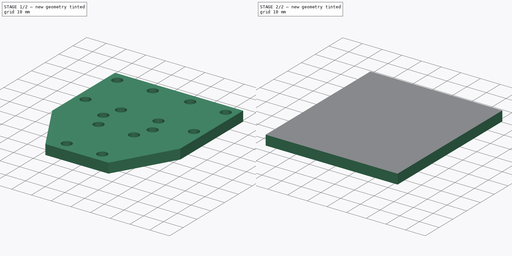
[diagram: build sequence overview — one tinted view per stage of 2, left to right]
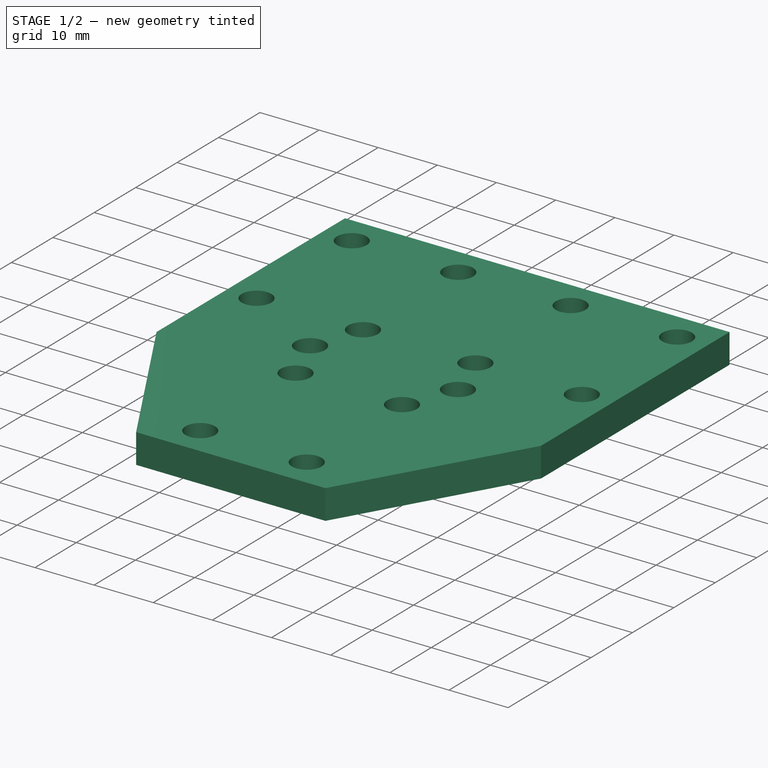
[diagram: stage 1 of 2 — iso view after this stage's code; geometry added in this stage tinted green]
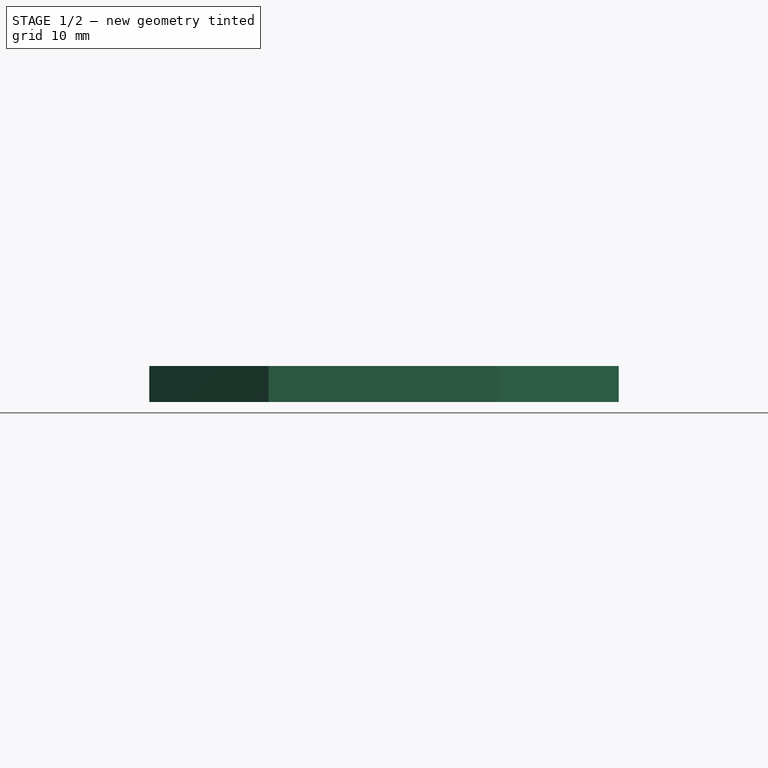
[diagram: stage 1 of 2 — front view after this stage's code; geometry added in this stage tinted green]
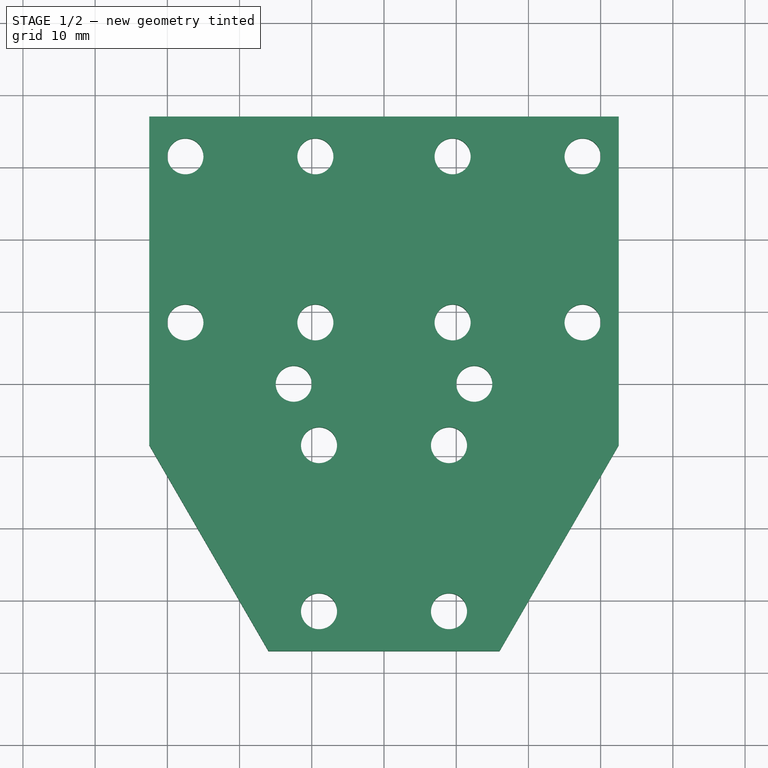
[diagram: stage 1 of 2 — top view after this stage's code; geometry added in this stage tinted green]
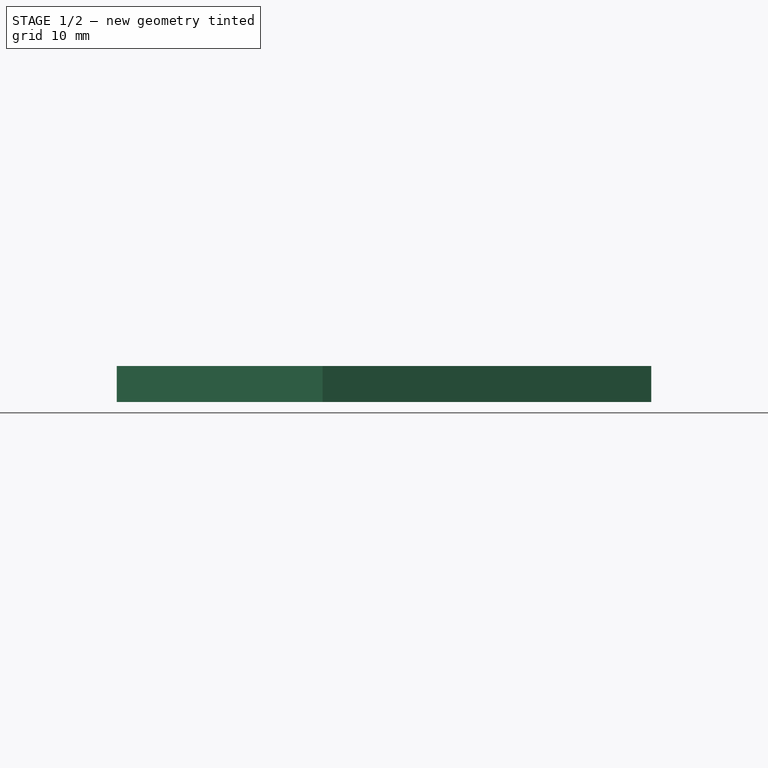
[diagram: stage 1 of 2 — right view after this stage's code; geometry added in this stage tinted green]
FCSTD DOCUMENT  (FreeCAD 0.18.3R)
Label: Soporte_Hot_end
License: All rights reserved
LicenseURL: http://en.wikipedia.org/wiki/All_rights_reserved
objects: Path::FeaturePython×4, Part::FeaturePython×2, Sketcher::SketchObject×1, PartDesign::Pad×1, PartDesign::Body×1, App::FeaturePython×1, App::DocumentObjectGroup×1, Path::FeatureCompoundPython×1
note: 8 computed .brp shape members not serialized (recipe doc carries the construction recipe); baked Part::Feature solids carry a one-line shape summary decoded from their .brp

FEATURE [Sketcher::SketchObject] Sketch
  MapMode = 5
  Support = -> [XY_Plane]
  sketch-geometry (27):
    g0: LineSegment [constr] StartX=-32.5 StartY=20 StartZ=0 EndX=32.5 EndY=20 EndZ=0
    g1: LineSegment [constr] StartX=32.5 StartY=20 StartZ=0 EndX=32.5 EndY=-20 EndZ=0
    g2: LineSegment [constr] StartX=32.5 StartY=-20 StartZ=0 EndX=-32.5 EndY=-20 EndZ=0
    g3: LineSegment [constr] StartX=-32.5 StartY=-20 StartZ=0 EndX=-32.5 EndY=20 EndZ=0
    g4: LineSegment StartX=-32.5 StartY=37 StartZ=0 EndX=32.5 EndY=37 EndZ=0
    g5: LineSegment [constr] StartX=32.5 StartY=37 StartZ=0 EndX=32.5 EndY=-37 EndZ=0
    g6: LineSegment [constr] StartX=32.5 StartY=-37 StartZ=0 EndX=-32.5 EndY=-37 EndZ=0
    g7: LineSegment [constr] StartX=-32.5 StartY=-37 StartZ=0 EndX=-32.5 EndY=37 EndZ=0
    g8: Circle CenterX=27.5 CenterY=31.5 CenterZ=0 NormalX=0 NormalY=0 NormalZ=1 AngleXU=0 Radius=2.5
    g9: Circle CenterX=-27.5 CenterY=31.5 CenterZ=0 NormalX=0 NormalY=0 NormalZ=1 AngleXU=0 Radius=2.5
    g10: Circle CenterX=9.5 CenterY=31.5 CenterZ=0 NormalX=0 NormalY=0 NormalZ=1 AngleXU=0 Radius=2.5
    g11: Circle CenterX=-9.5 CenterY=31.5 CenterZ=0 NormalX=0 NormalY=0 NormalZ=1 AngleXU=0 Radius=2.5
    g12: Circle CenterX=27.5 CenterY=8.5 CenterZ=0 NormalX=0 NormalY=0 NormalZ=1 AngleXU=0 Radius=2.5
    g13: Circle CenterX=-27.5 CenterY=8.5 CenterZ=0 NormalX=0 NormalY=0 NormalZ=1 AngleXU=0 Radius=2.5
    g14: Circle CenterX=9.5 CenterY=8.5 CenterZ=0 NormalX=0 NormalY=0 NormalZ=1 AngleXU=0 Radius=2.5
    g15: Circle CenterX=-9.5 CenterY=8.5 CenterZ=0 NormalX=0 NormalY=0 NormalZ=1 AngleXU=0 Radius=2.5
    g16: Circle CenterX=9 CenterY=-31.5 CenterZ=0 NormalX=0 NormalY=0 NormalZ=1 AngleXU=0 Radius=2.5
    g17: Circle CenterX=-9 CenterY=-31.5 CenterZ=0 NormalX=0 NormalY=0 NormalZ=1 AngleXU=0 Radius=2.5
    g18: Circle CenterX=9 CenterY=-8.5 CenterZ=0 NormalX=0 NormalY=0 NormalZ=1 AngleXU=0 Radius=2.5
    g19: Circle CenterX=-9 CenterY=-8.5 CenterZ=0 NormalX=0 NormalY=0 NormalZ=1 AngleXU=0 Radius=2.5
    g20: Circle CenterX=12.5 CenterY=0 CenterZ=0 NormalX=0 NormalY=0 NormalZ=1 AngleXU=0 Radius=2.5
    g21: Circle CenterX=-12.5 CenterY=0 CenterZ=0 NormalX=0 NormalY=0 NormalZ=1 AngleXU=0 Radius=2.5
    g22: LineSegment StartX=32.5 StartY=-8.5 StartZ=0 EndX=16 EndY=-37 EndZ=0
    g23: LineSegment StartX=32.5 StartY=37 StartZ=0 EndX=32.5 EndY=-8.5 EndZ=0
    g24: LineSegment StartX=16 StartY=-37 StartZ=0 EndX=-16 EndY=-37 EndZ=0
    g25: LineSegment StartX=-16 StartY=-37 StartZ=0 EndX=-32.5 EndY=-8.5 EndZ=0
    g26: LineSegment StartX=-32.5 StartY=-8.5 StartZ=0 EndX=-32.5 EndY=37 EndZ=0
  constraints (76):
    c: Coincident(g0,g1)
    c: Coincident(g1,g2)
    c: Coincident(g2,g3)
    c: Coincident(g3,g0)
    c: Horizontal(g0)
    c: Horizontal(g2)
    c: Vertical(g1)
    c: Vertical(g3)
    c: DistanceY(g3,g3) = 40
    c: DistanceX(g0,g0) = 65
    c: Coincident(g4,g5)
    c: Coincident(g5,g6)
    c: Coincident(g6,g7)
    c: Coincident(g7,g4)
    c: Horizontal(g4)
    c: Horizontal(g6)
    c: Vertical(g5)
    c: Vertical(g7)
    c: Symmetric(g0,g1,g-1)
    c: Symmetric(g5,g4,g-1)
    c: DistanceY(g5,g1) = 17
    c: DistanceX(g6,g2) = 0
    c: DistanceY(g0,g8) = 11.5
    c: Radius(g8) = 2.5  'holes'
    c: DistanceX(g8,g0) = 5
    c: Radius(g9) = 2.5  'holes'
    c: DistanceX(g0,g9) = 5
    c: DistanceY(g0,g9) = 11.5
    c: Equal(g8,g10) = 2.5  'holes'
    c: DistanceY(g0,g10) = 11.5
    c: DistanceX(g10,g8) = 18
    c: DistanceX(g9,g11) = 18
    c: DistanceY(g0,g11) = 11.5
    c: Equal(g11,g10)
    c: Radius(g12) = 2.5  'holes'
    c: Radius(g13) = 2.5  'holes'
    c: Equal(g12,g14) = 2.5  'holes'
    c: Equal(g15,g14)
    c: DistanceX(g12,g1) = 5
    c: DistanceY(g12,g0) = 11.5
    c: DistanceX(g14,g12) = 18
    c: DistanceY(g14,g0) = 11.5
    c: DistanceX(g0,g13) = 5
    c: DistanceY(g13,g0) = 11.5
    c: DistanceX(g13,g15) = 18
    c: DistanceY(g15,g0) = 11.5
    c: Radius(g16) = 2.5  'holes'
    c: Equal(g16,g17) = 2.5  'holes'
    c: Radius(g18) = 2.5  'holes'
    c: Equal(g18,g19) = 2.5  'holes'
    c: DistanceX(g19,g18) = 18
    c: DistanceX(g17,g16) = 18
    c: DistanceY(g1,g19) = 11.5
    c: DistanceY(g17,g1) = 11.5
    c: DistanceY(g16,g1) = 11.5
    c: DistanceX(g19,g17) = 0
    c: Symmetric(g19,g18,g-2)
    c: Equal(g21,g20)
    c: Symmetric(g21,g20,g-2)
    c: DistanceX(g21,g20) = 25
    c: Equal(g20,g14)
    c: PointOnObject(g21,g-1)
    c: PointOnObject(g22,g1)
    c: PointOnObject(g22,g6)
    c: Coincident(g23,g4)
    c: Coincident(g23,g22)
    c: Coincident(g24,g22)
    c: Coincident(g25,g24)
    c: PointOnObject(g25,g3)
    c: Coincident(g26,g25)
    c: Vertical(g26)
    c: Symmetric(g24,g22,g-2)
    c: Equal(g26,g23)
    c: DistanceY(g19,g25) = 0
    c: Equal(g22,g25)
    c: DistanceX(g24,g24) = 32
FEATURE [PartDesign::Pad] Pad
  Length = 5
  Length2 = 100
  Profile = -> Sketch
  Refine = true
  Reversed = true
  Type = 0
FEATURE [PartDesign::Body] Body
  Group = -> [Sketch,Pad]
  Origin = -> Origin
  Tip = -> Pad
FEATURE [App::FeaturePython] SetupSheet  # Path/CAM operation (typed FeaturePython)
  ClearanceHeightExpression = OpStockZMax+SetupSheet.ClearanceHeightOffset
  ClearanceHeightOffset = 3
  FinalDepthExpression = -5.5mm
  HorizRapid = 4
  SafeHeightExpression = OpStockZMax+SetupSheet.SafeHeightOffset
  SafeHeightOffset = 3
  StartDepthExpression = 0mm
  StepDownExpression = 1.5mm
  VertRapid = 4
FEATURE [Part::FeaturePython] Clone  label="Model-Body"  # Draft clone (typed FeaturePython)
  AttacherType = Attacher::AttachEngine3D
  Fuse = false
  Objects = -> [Body]
  PathResource = Model
  Scale = (1,1,1)
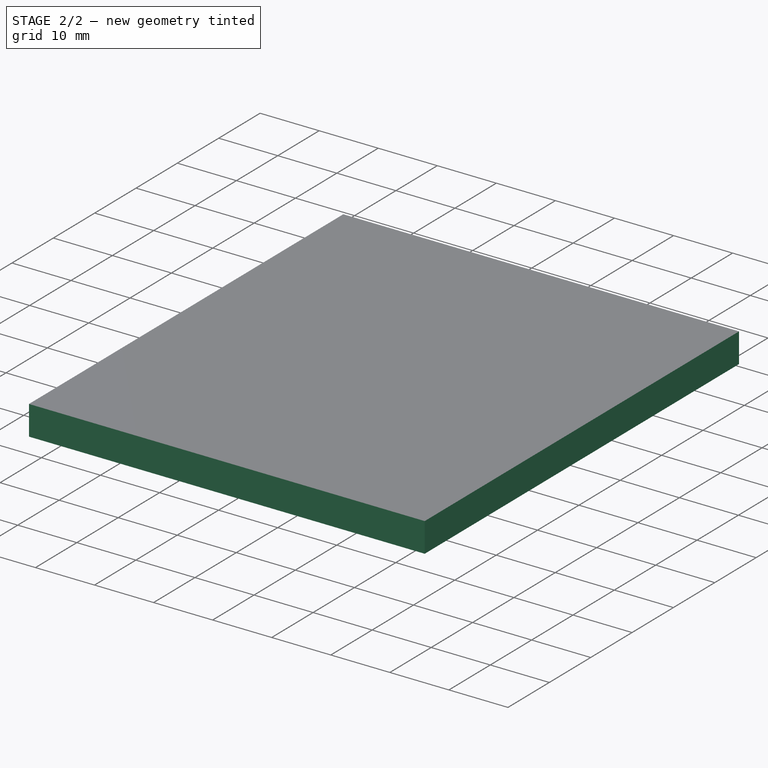
[diagram: stage 2 of 2 — iso view after this stage's code; geometry added in this stage tinted green]
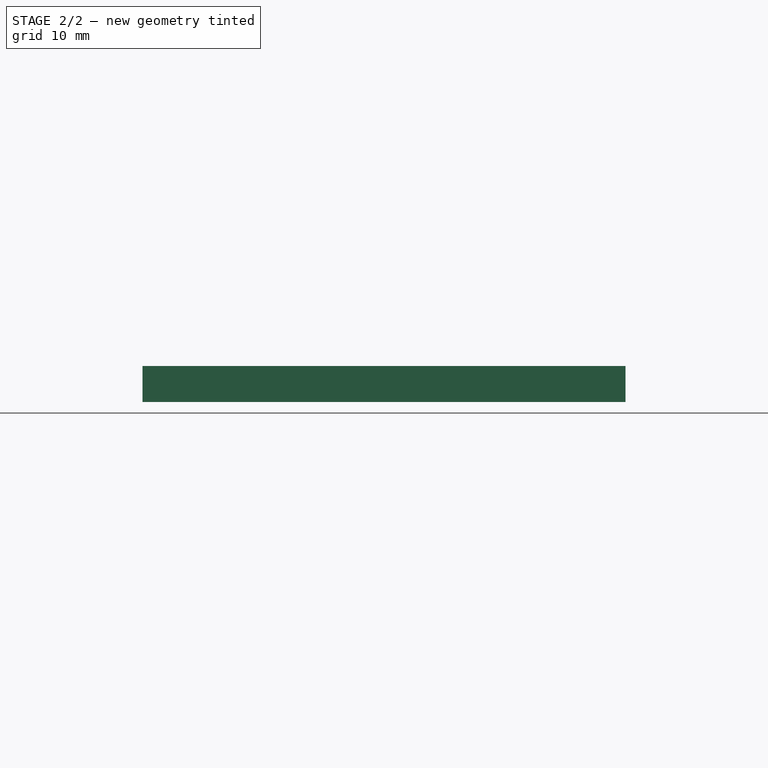
[diagram: stage 2 of 2 — front view after this stage's code; geometry added in this stage tinted green]
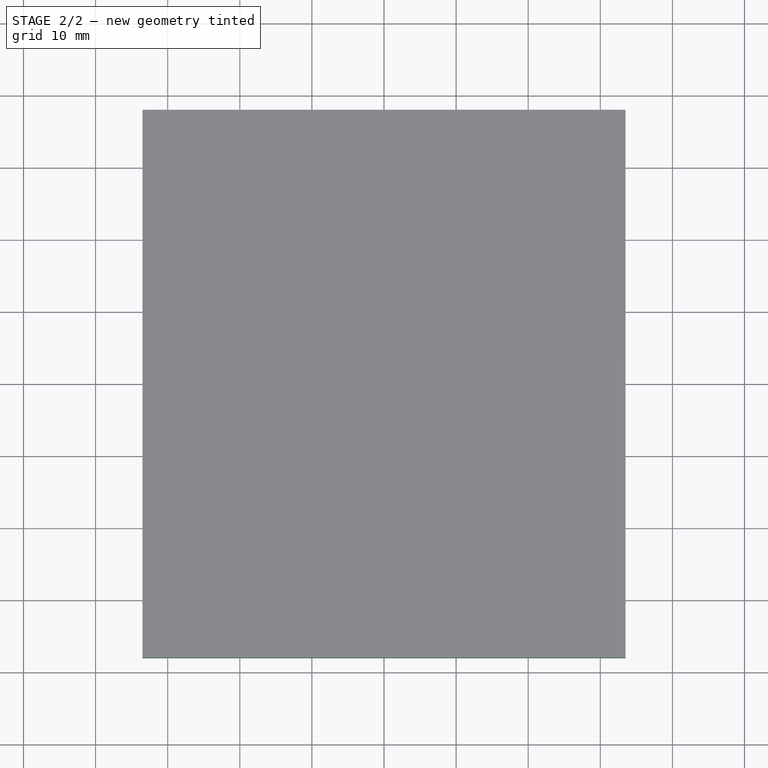
[diagram: stage 2 of 2 — top view after this stage's code; geometry added in this stage tinted green]
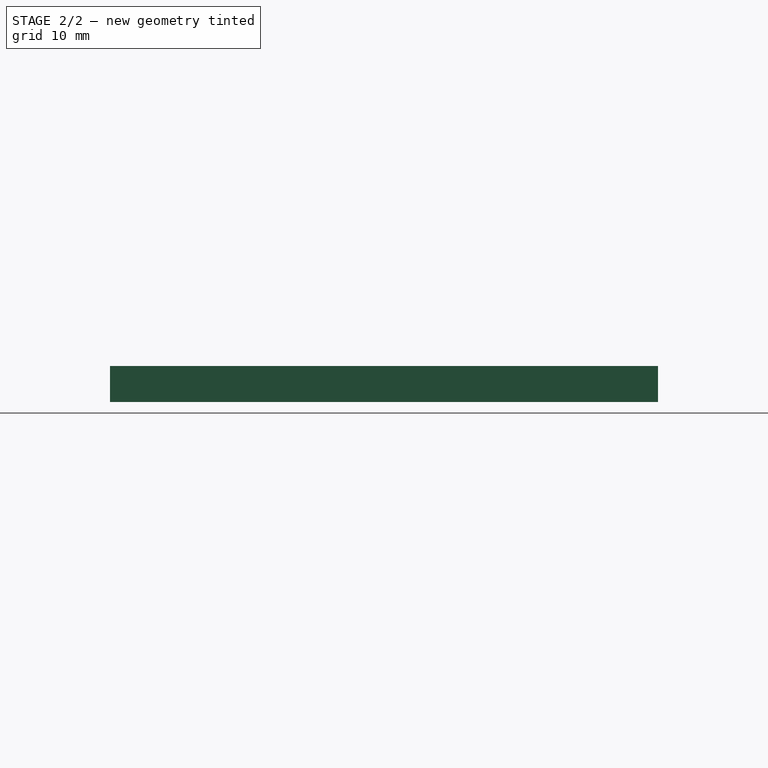
[diagram: stage 2 of 2 — right view after this stage's code; geometry added in this stage tinted green]
FEATURE [App::DocumentObjectGroup] Model
  Group = -> [Clone]
FEATURE [Path::FeaturePython] Default_Tool  label="Fresa 3mm"  # Path/CAM operation (typed FeaturePython)
  HorizFeed = 1.67
  HorizRapid = 4
  SpindleDir = 0
  SpindleSpeed = 0
  ToolNumber = 2
  VertFeed = 1.33
  VertRapid = 4
  expr: HorizRapid = SetupSheet.HorizRapid
  expr: VertRapid = SetupSheet.VertRapid
FEATURE [Part::FeaturePython] Stock  # WARN: FeaturePython — macro-defined, semantics opaque (R4)
  Base = -> Model
  ExtXneg = 1
  ExtXpos = 1
  ExtYneg = 1
  ExtYpos = 1
  ExtZneg = 0
  ExtZpos = 0
  Placement = pos=(-32.5,-37,-5) rot=(0,0,1;0rad)
  StockType = FromBase
FEATURE [Path::FeaturePython] Profile_Edges  label="Agujeros"  # Path/CAM operation (typed FeaturePython)
  Active = true
  AreaParams:
    Tolerance = 1e-07
    FitArcs = True
    Simplify = False
    CleanDistance = 0.0
    Accuracy = 0.01
    Unit = 1.0
    MinArcPoints = 4
    MaxArcPoints = 100
    ClipperScale = 10000000.0
    Fill = 0
    Coplanar = 0
    Reorient = True
    Outline = False
    Explode = False
    OpenMode = 0
    Deflection = 0.01
    SubjectFill = 0
    ClipFill = 0
    Offset = -1.5
    ExtraPass = 0
    Stepover = 0.0
    LastStepover = 0.0
    JoinType = 0
    EndType = 0
    MiterLimit = 2.0
    RoundPrecision = 0.0
    PocketMode = 0
    ToolRadius = 1.0
    PocketExtraOffset = 0.0
    PocketStepover = 0.0
    PocketLastStepover = 0.0
    FromCenter = False
    Angle = 45.0
    AngleShift = 0.0
    Shift = 0.0
    Thicken = False
    SectionCount = -1
    Stepdown = 1.0
    SectionOffset = 0.0
    SectionTolerance = 1e-06
    SectionMode = 2
    Project = False
  Base = -> [Clone]
  ClearanceHeight = 3
  Direction = 0
  FinalDepth = -5.5
  JoinType = 0
  MiterLimit = 0.1
  OffsetExtra = 0
  OpFinalDepth = 0
  OpStartDepth = 1.5
  OpStockZMax = 0
  OpStockZMin = -5
  OpToolDiameter = 3
  PathParams = {'orientation': 1, 'feedrate': 1.67, 'feedrate_v': 1.33, 'verbose': True, 'resume_height': 3.0, 'retraction': 3.0, 'return_end': True, 'preamble': False}
  SafeHeight = 3
  Side = 1
  StartDepth = 1.5
  StartPoint = (0,0,0)
  StepDown = 1.5
  ToolController = -> Default_Tool
  UseComp = true
  UseStartPoint = false
  expr: ClearanceHeight = OpStockZMax + SetupSheet.ClearanceHeightOffset
  expr: SafeHeight = OpStockZMax + SetupSheet.SafeHeightOffset
  expr: StepDown = 1.5
  expr: FinalDepth = -5.5mm
  expr: StartDepth = OpStartDepth
FEATURE [Path::FeaturePython] Contour  # Path/CAM operation (typed FeaturePython)
  Active = true
  AreaParams:
    Tolerance = 1e-07
    FitArcs = True
    Simplify = False
    CleanDistance = 0.0
    Accuracy = 0.01
    Unit = 1.0
    MinArcPoints = 4
    MaxArcPoints = 100
    ClipperScale = 10000000.0
    Fill = 0
    Coplanar = 2
    Reorient = True
    Outline = False
    Explode = False
    OpenMode = 0
    Deflection = 0.01
    SubjectFill = 0
    ClipFill = 0
    Offset = 1.5
    ExtraPass = 0
    Stepover = 0.0
    LastStepover = 0.0
    JoinType = 0
    EndType = 0
    MiterLimit = 2.0
    RoundPrecision = 0.0
    PocketMode = 0
    ToolRadius = 1.0
    PocketExtraOffset = 0.0
    PocketStepover = 0.0
    PocketLastStepover = 0.0
    FromCenter = False
    Angle = 45.0
    AngleShift = 0.0
    Shift = 0.0
    Thicken = False
    SectionCount = -1
    Stepdown = 1.0
    SectionOffset = 0.0
    SectionTolerance = 1e-06
    SectionMode = 2
    Project = False
  ClearanceHeight = 3
  Direction = 0
  FinalDepth = -5.5
  JoinType = 0
  MiterLimit = 0.1
  OffsetExtra = 0
  OpFinalDepth = -5
  OpStartDepth = 0
  OpStockZMax = 0
  OpStockZMin = -5
  OpToolDiameter = 3
  PathParams = {'orientation': 1, 'feedrate': 1.67, 'feedrate_v': 1.33, 'verbose': True, 'resume_height': 3.0, 'retraction': 3.0, 'return_end': True, 'preamble': False}
  SafeHeight = 3
  Side = 0
  StartDepth = 0
  StartPoint = (0,0,0)
  StepDown = 1.5
  ToolController = -> Default_Tool
  UseComp = true
  UseStartPoint = false
  expr: ClearanceHeight = OpStockZMax + SetupSheet.ClearanceHeightOffset
  expr: SafeHeight = OpStockZMax + SetupSheet.SafeHeightOffset
  expr: StepDown = 1.5mm
  expr: FinalDepth = -5.5mm
  expr: StartDepth = 0
FEATURE [Path::FeatureCompoundPython] Operations  # Path/CAM operation (typed FeaturePython)
  Group = -> [Profile_Edges,Contour]
  UsePlacements = false
FEATURE [Path::FeaturePython] Job  # Path/CAM operation (typed FeaturePython)
  GeometryTolerance = 0.01
  Model = -> Model
  Operations = -> Operations
  PostProcessor = 1
  SetupSheet = -> SetupSheet
  Stock = -> Stock
  ToolController = -> [Default_Tool]
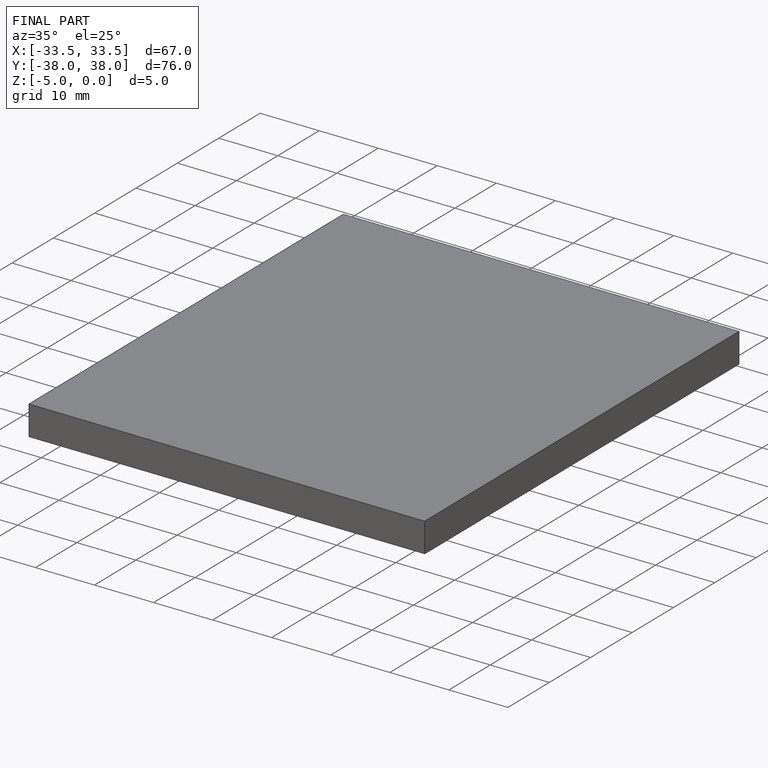
[diagram: finished part — iso view with bounding-box wireframe]
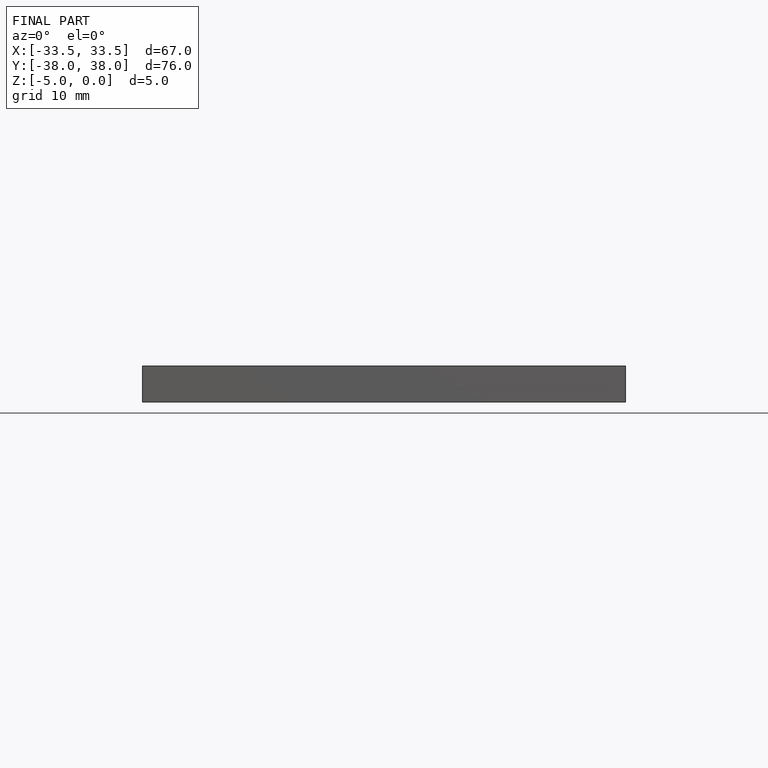
[diagram: finished part — front view with bounding-box wireframe]
